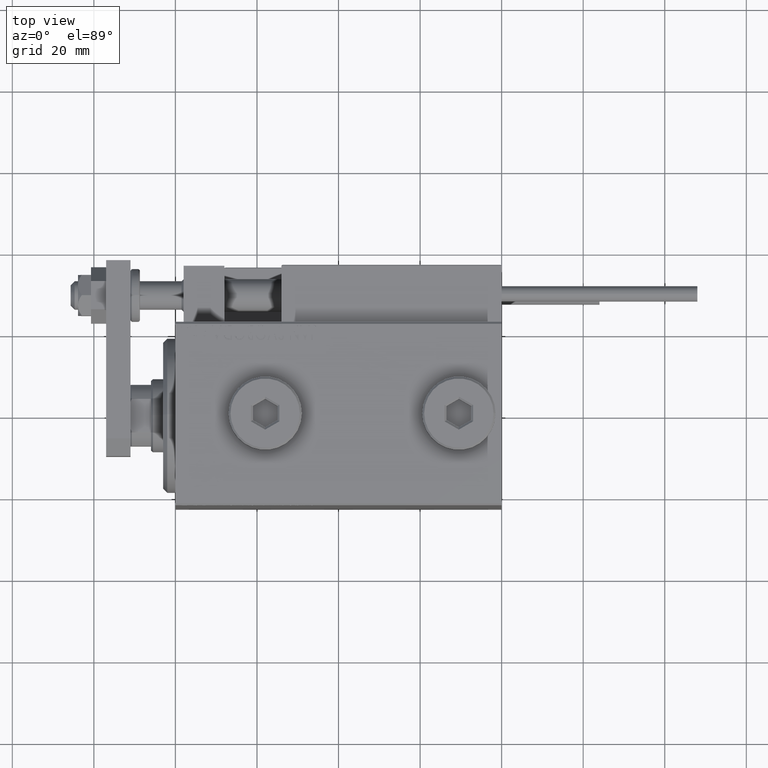
[diagram: clean part render]
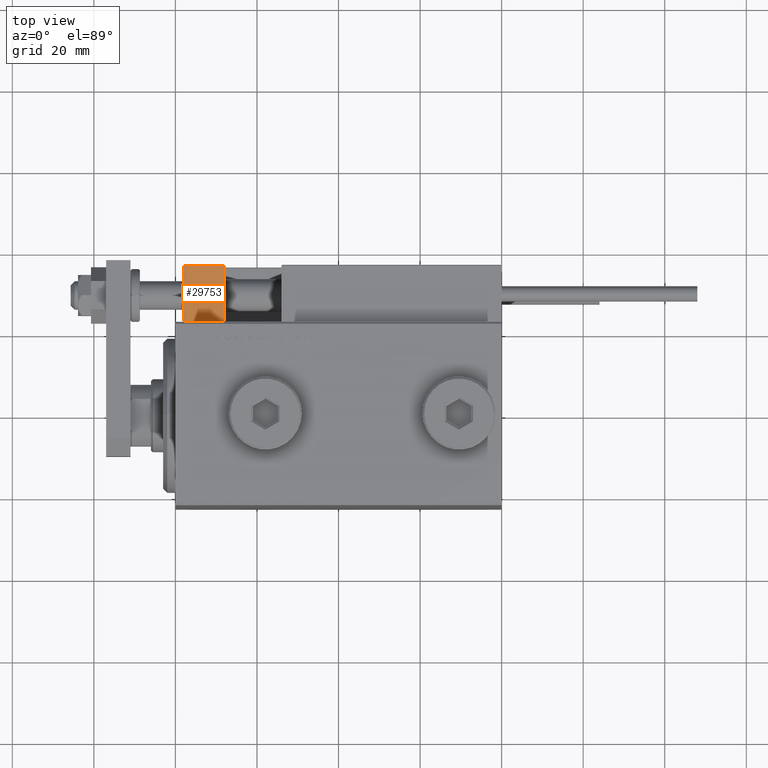
[diagram: same view with one face highlighted and labeled with its STEP entity id]
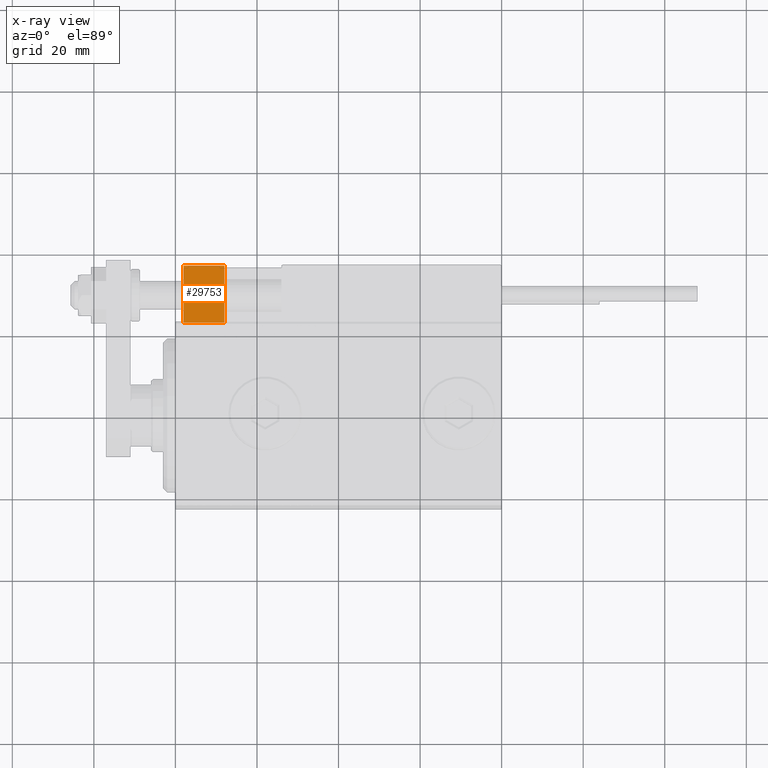
[diagram: x-ray of the same camera — body ghosted, the highlighted face saturated]
A machine part, top view. The second image highlights one B-rep face of the part: STEP entity #29753.
The next image is the same camera in x-ray: the body ghosted, the highlighted face saturated — about 0% of this face is hidden behind the body in this view.
In plain terms, the highlighted planar face has unit normal (-0, -0, 1).
Its self-contained STEP definition (entity closure, byte-faithful):
#960 = VECTOR ( 'NONE', #49101, 1000.000000000000000 ) ;
#1584 = DIRECTION ( 'NONE',  ( -1.000000000000000000, -0.000000000000000000, -0.000000000000000000 ) ) ;
#2459 = EDGE_CURVE ( 'NONE', #25070, #26708, #20654, .T. ) ;
#2849 = DIRECTION ( 'NONE',  ( -1.000000000000000000, -0.000000000000000000, -0.000000000000000000 ) ) ;
#4058 = DIRECTION ( 'NONE',  ( 0.000000000000000000, 0.000000000000000000, -1.000000000000000000 ) ) ;
#6932 = EDGE_CURVE ( 'NONE', #28813, #26708, #29768, .T. ) ;
#7536 = ORIENTED_EDGE ( 'NONE', *, *, #17649, .F. ) ;
#7581 = CARTESIAN_POINT ( 'NONE',  ( 10.00000000000000000, 7.000000000000000000, -16.00000000000000711 ) ) ;
#9059 = LINE ( 'NONE', #25288, #51463 ) ;
#12638 = CARTESIAN_POINT ( 'NONE',  ( 0.000000000000000000, 7.000000000000000000, -16.00000000000000711 ) ) ;
#13085 = CARTESIAN_POINT ( 'NONE',  ( 10.00000000000000000, 7.000000000000000000, -16.00000000000000711 ) ) ;
#14382 = EDGE_CURVE ( 'NONE', #48520, #28813, #9059, .T. ) ;
#16549 = PLANE ( 'NONE',  #42567 ) ;
#17356 = DIRECTION ( 'NONE',  ( -1.000000000000000000, 0.000000000000000000, -0.000000000000000000 ) ) ;
#17649 = EDGE_CURVE ( 'NONE', #48520, #25070, #18792, .T. ) ;
#18792 = LINE ( 'NONE', #7581, #24372 ) ;
#18944 = VECTOR ( 'NONE', #1584, 1000.000000000000000 ) ;
#20654 = LINE ( 'NONE', #21726, #960 ) ;
#21726 = CARTESIAN_POINT ( 'NONE',  ( 0.000000000000000000, 7.000000000000000000, -16.00000000000000711 ) ) ;
#22605 = CARTESIAN_POINT ( 'NONE',  ( 0.000000000000000000, -7.000000000000000000, -16.00000000000000711 ) ) ;
#24372 = VECTOR ( 'NONE', #2849, 1000.000000000000000 ) ;
#25070 = VERTEX_POINT ( 'NONE', #12638 ) ;
#25288 = CARTESIAN_POINT ( 'NONE',  ( 10.00000000000000000, 7.000000000000000000, -16.00000000000000711 ) ) ;
#25398 = ORIENTED_EDGE ( 'NONE', *, *, #2459, .F. ) ;
#26708 = VERTEX_POINT ( 'NONE', #22605 ) ;
#28813 = VERTEX_POINT ( 'NONE', #31573 ) ;
#29753 = ADVANCED_FACE ( 'NONE', ( #48722 ), #16549, .T. ) ;
#29768 = LINE ( 'NONE', #38014, #18944 ) ;
#31287 = EDGE_LOOP ( 'NONE', ( #25398, #7536, #44270, #34687 ) ) ;
#31573 = CARTESIAN_POINT ( 'NONE',  ( 10.00000000000000000, -7.000000000000000000, -16.00000000000000711 ) ) ;
#32996 = CARTESIAN_POINT ( 'NONE',  ( 10.00000000000000000, 7.000000000000000000, -16.00000000000000711 ) ) ;
#34687 = ORIENTED_EDGE ( 'NONE', *, *, #6932, .T. ) ;
#38014 = CARTESIAN_POINT ( 'NONE',  ( 10.00000000000000000, -7.000000000000000000, -16.00000000000000711 ) ) ;
#42567 = AXIS2_PLACEMENT_3D ( 'NONE', #13085, #4058, #17356 ) ;
#44270 = ORIENTED_EDGE ( 'NONE', *, *, #14382, .T. ) ;
#46024 = DIRECTION ( 'NONE',  ( 0.000000000000000000, -1.000000000000000000, 0.000000000000000000 ) ) ;
#48520 = VERTEX_POINT ( 'NONE', #32996 ) ;
#48722 = FACE_OUTER_BOUND ( 'NONE', #31287, .T. ) ;
#49101 = DIRECTION ( 'NONE',  ( 0.000000000000000000, -1.000000000000000000, 0.000000000000000000 ) ) ;
#51463 = VECTOR ( 'NONE', #46024, 1000.000000000000000 ) ;